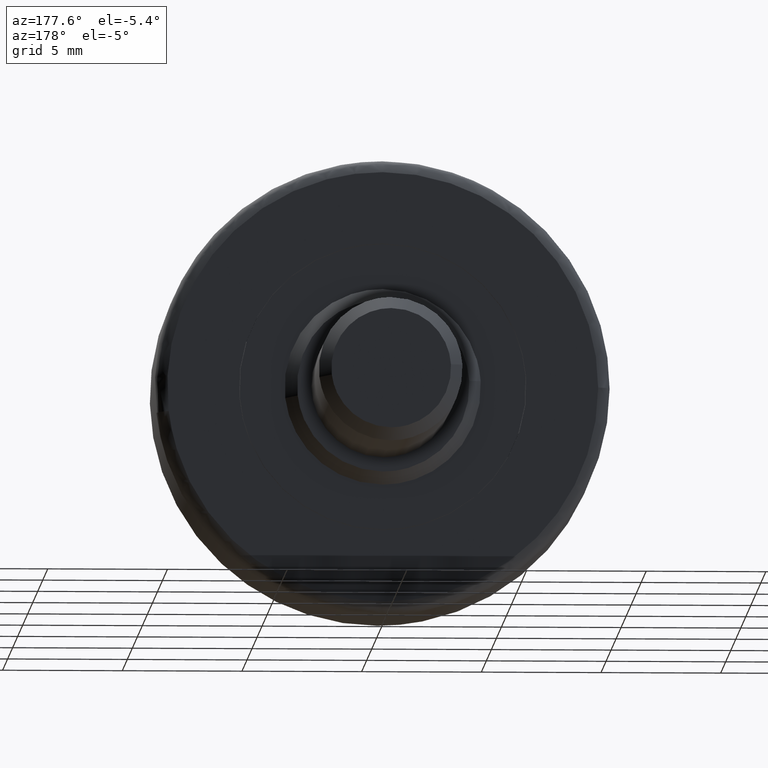
[diagram: clean part render]
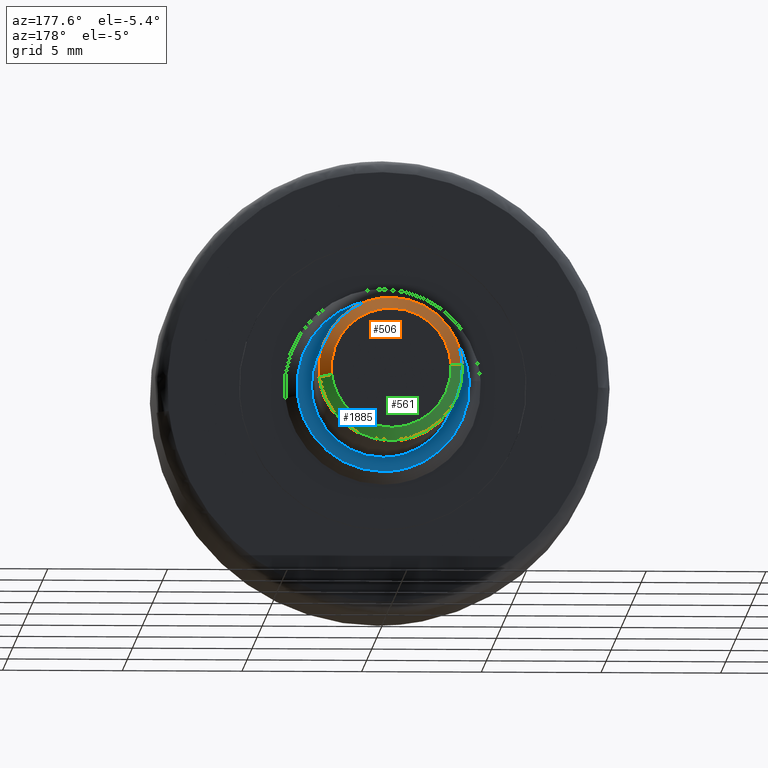
[diagram: same view with three faces highlighted in distinct colors, each labeled with its STEP entity id]
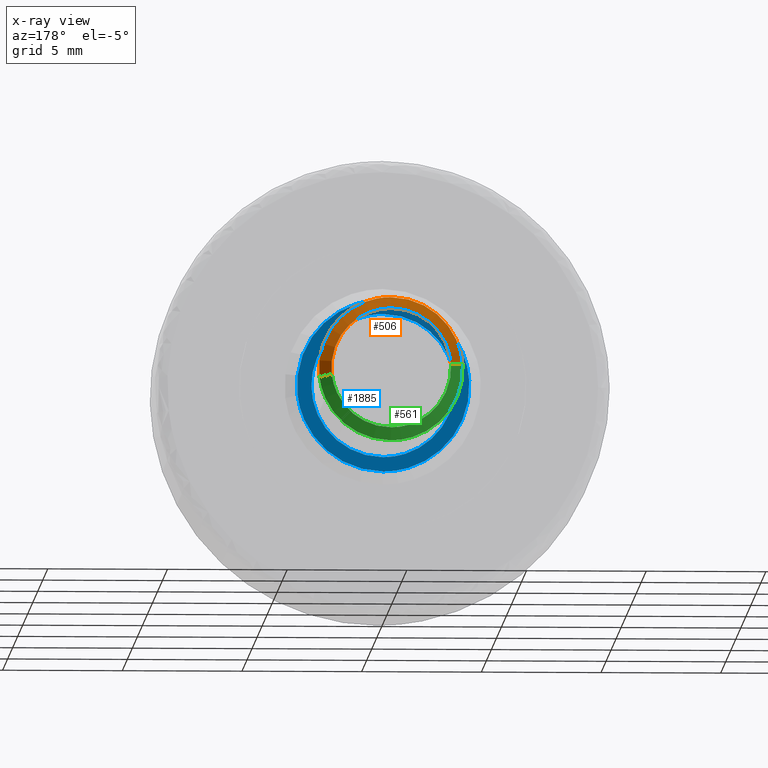
[diagram: x-ray of the same camera — body ghosted, the three highlighted faces saturated]
A machine part, auxiliary view with three faces highlighted in distinct colors.
The next image is the same camera in x-ray (body ghosted, the three faces saturated) — at least one of them is partly hidden behind the body in this view.
Their STEP definitions:

[orange] entity #506 — the highlighted face is a freeform B-spline surface patch.
#252=CARTESIAN_POINT('',(1.054853923180691,14.0,2.808430736327727));
#253=VERTEX_POINT('',#252);
#254=CARTESIAN_POINT('',(0.0,14.0,3.0));
#255=VERTEX_POINT('',#254);
#256=CARTESIAN_POINT('',(1.054853923180691,14.000000000000004,2.808430736327728));
#257=CARTESIAN_POINT('',(0.544822158206875,14.0,3.000000000000000));
#258=CARTESIAN_POINT('',(0.0,14.0,3.0));
#266=(BOUNDED_CURVE()B_SPLINE_CURVE(2,(#256,#257,#258),.UNSPECIFIED.,.F.,.U.)B_SPLINE_CURVE_WITH_KNOTS((3,3),(0.440284170898237,0.500000000000000),.UNSPECIFIED.)CURVE()GEOMETRIC_REPRESENTATION_ITEM()RATIONAL_B_SPLINE_CURVE((0.893499554634943,0.930038554401083,1.0))REPRESENTATION_ITEM(''));
#267=EDGE_CURVE('',#253,#255,#266,.T.);
#269=CARTESIAN_POINT('',(-2.994404395266901,13.999999999995220,0.183145618622853));
#270=VERTEX_POINT('',#269);
#271=CARTESIAN_POINT('',(0.0,14.0,3.0));
#272=CARTESIAN_POINT('',(-2.822118200648589,13.999999999999996,3.0));
#273=CARTESIAN_POINT('',(-2.994404395266901,13.999999999995214,0.183145618622853));
#281=(BOUNDED_CURVE()B_SPLINE_CURVE(2,(#271,#272,#273),.UNSPECIFIED.,.F.,.U.)B_SPLINE_CURVE_WITH_KNOTS((3,3),(0.500000000000000,0.739332962237788),.UNSPECIFIED.)CURVE()GEOMETRIC_REPRESENTATION_ITEM()RATIONAL_B_SPLINE_CURVE((1.0,0.719603993288063,0.976072041664243))REPRESENTATION_ITEM(''));
#282=EDGE_CURVE('',#255,#270,#281,.T.);
#351=CARTESIAN_POINT('',(2.979028579091068,13.999999999998851,-0.354102703979432));
#352=VERTEX_POINT('',#351);
#353=CARTESIAN_POINT('',(2.979028579091068,13.999999999998845,-0.354102703979432));
#354=CARTESIAN_POINT('',(3.0,14.000000000000004,-0.177672358964846));
#355=CARTESIAN_POINT('',(3.0,14.0,-1.552808E-016));
#356=CARTESIAN_POINT('',(3.0,13.999999999999995,2.077828787073818));
#357=CARTESIAN_POINT('',(1.054853923180691,14.000000000000004,2.808430736327728));
#365=(BOUNDED_CURVE()B_SPLINE_CURVE(2,(#353,#354,#355,#356,#357),.UNSPECIFIED.,.F.,.U.)B_SPLINE_CURVE_WITH_KNOTS((3,2,3),(0.229562473514621,0.250000000000000,0.440284170898238),.UNSPECIFIED.)CURVE()GEOMETRIC_REPRESENTATION_ITEM()RATIONAL_B_SPLINE_CURVE((0.956026754185880,0.976055948332448,1.0,0.777068226785465,0.893499554634943))REPRESENTATION_ITEM(''));
#366=EDGE_CURVE('',#352,#253,#365,.T.);
#435=CARTESIAN_POINT('',(2.470111196829619,14.512500000000003,-0.293610158708687));
#436=CARTESIAN_POINT('',(2.478514193428405,14.512499999999999,-0.222916637486969));
#437=CARTESIAN_POINT('',(2.482860311074392,14.512499999999999,-0.151858242092957));
#438=CARTESIAN_POINT('',(2.634718553167348,14.512499999999999,2.331002068981435));
#439=CARTESIAN_POINT('',(0.151858242092957,14.512499999999999,2.482860311074392));
#440=CARTESIAN_POINT('',(-2.331002068981435,14.512499999999999,2.634718553167348));
#441=CARTESIAN_POINT('',(-2.482860311074392,14.512499999999999,0.151858242092957));
#442=CARTESIAN_POINT('',(2.991751513647535,13.987187500000005,-0.355615017601816));
#443=CARTESIAN_POINT('',(3.001929062668754,13.987187500000001,-0.269992374624607));
#444=CARTESIAN_POINT('',(3.007192997370382,13.987187499999999,-0.183927803017362));
#445=CARTESIAN_POINT('',(3.191120800387744,13.987187499999999,2.823265194353021));
#446=CARTESIAN_POINT('',(0.183927803017361,13.987187499999999,3.007192997370382));
#447=CARTESIAN_POINT('',(-2.823265194353021,13.987187499999999,3.191120800387744));
#448=CARTESIAN_POINT('',(-3.007192997370382,13.987187499999999,0.183927803017361));
#456=(BOUNDED_SURFACE()B_SPLINE_SURFACE(2,1,((#435,#442),(#436,#443),(#437,#444),(#438,#445),(#439,#446),(#440,#447),(#441,#448)),.UNSPECIFIED.,.F.,.F.,.U.)B_SPLINE_SURFACE_WITH_KNOTS((3,2,2,3),(2,2),(0.0,0.199671647741951,5.191462841290716,10.183254034839480),(0.0,1.0),.UNSPECIFIED.)GEOMETRIC_REPRESENTATION_ITEM()RATIONAL_B_SPLINE_SURFACE(((0.977505800795127,0.977505800795127),(0.988284271247462,0.988284271247462),(1.0,1.0),(0.707106781186548,0.707106781186548),(1.0,1.0),(0.707106781186548,0.707106781186548),(1.0,1.0)))REPRESENTATION_ITEM('')SURFACE());
#457=ORIENTED_EDGE('',*,*,#366,.F.);
#458=CARTESIAN_POINT('',(2.482523815909515,14.499999999994420,-0.295085586686244));
#459=VERTEX_POINT('',#458);
#460=CARTESIAN_POINT('',(2.482523815909515,14.499999999994420,-0.295085586686244));
#461=CARTESIAN_POINT('',(2.979028579091068,13.999999999998851,-0.354102703979432));
#462=QUASI_UNIFORM_CURVE('',1,(#460,#461),.UNSPECIFIED.,.F.,.U.);
#463=EDGE_CURVE('',#459,#352,#462,.T.);
#464=ORIENTED_EDGE('',*,*,#463,.F.);
#465=CARTESIAN_POINT('',(0.0,14.500000000000000,2.500000000000000));
#466=VERTEX_POINT('',#465);
#467=CARTESIAN_POINT('',(2.482523815909515,14.499999999994422,-0.295085586686244));
#468=CARTESIAN_POINT('',(2.500000000000000,14.500000000000005,-0.148060299173927));
#469=CARTESIAN_POINT('',(2.500000000000000,14.500000000000000,-1.552808E-016));
#470=CARTESIAN_POINT('',(2.500000000000000,14.500000000000000,2.500000000000000));
#471=CARTESIAN_POINT('',(0.0,14.500000000000000,2.500000000000000));
#479=(BOUNDED_CURVE()B_SPLINE_CURVE(2,(#467,#468,#469,#470,#471),.UNSPECIFIED.,.F.,.U.)B_SPLINE_CURVE_WITH_KNOTS((3,2,3),(0.229562473509696,0.250000000000000,0.500000000000000),.UNSPECIFIED.)CURVE()GEOMETRIC_REPRESENTATION_ITEM()RATIONAL_B_SPLINE_CURVE((0.956026754176226,0.976055948326678,1.0,0.707106781186548,1.0))REPRESENTATION_ITEM(''));
#480=EDGE_CURVE('',#459,#466,#479,.T.);
#481=ORIENTED_EDGE('',*,*,#480,.T.);
#482=CARTESIAN_POINT('',(-2.495336996060050,14.499999999989960,0.152621348913621));
#483=VERTEX_POINT('',#482);
#484=CARTESIAN_POINT('',(0.0,14.500000000000000,2.500000000000000));
#485=CARTESIAN_POINT('',(-2.351765167120956,14.499999999999998,2.500000000000000));
#486=CARTESIAN_POINT('',(-2.495336996060051,14.499999999989962,0.152621348913621));
#494=(BOUNDED_CURVE()B_SPLINE_CURVE(2,(#484,#485,#486),.UNSPECIFIED.,.F.,.U.)B_SPLINE_CURVE_WITH_KNOTS((3,3),(0.500000000000000,0.739332962231475),.UNSPECIFIED.)CURVE()GEOMETRIC_REPRESENTATION_ITEM()RATIONAL_B_SPLINE_CURVE((1.0,0.719603993295459,0.976072041650714))REPRESENTATION_ITEM(''));
#495=EDGE_CURVE('',#466,#483,#494,.T.);
#496=ORIENTED_EDGE('',*,*,#495,.T.);
#497=CARTESIAN_POINT('',(-2.495336996060050,14.499999999989960,0.152621348913621));
#498=CARTESIAN_POINT('',(-2.994404395266901,13.999999999995220,0.183145618622853));
#499=QUASI_UNIFORM_CURVE('',1,(#497,#498),.UNSPECIFIED.,.F.,.U.);
#500=EDGE_CURVE('',#483,#270,#499,.T.);
#501=ORIENTED_EDGE('',*,*,#500,.T.);
#502=ORIENTED_EDGE('',*,*,#282,.F.);
#503=ORIENTED_EDGE('',*,*,#267,.F.);
#504=EDGE_LOOP('',(#457,#464,#481,#496,#501,#502,#503));
#505=FACE_OUTER_BOUND('',#504,.T.);
#506=ADVANCED_FACE('',(#505),#456,.T.);

[blue] entity #1885 — the highlighted face is a freeform B-spline surface patch.
#85=CARTESIAN_POINT('',(3.574834294909421,6.499999999996467,-0.424923244792396));
#86=VERTEX_POINT('',#85);
#92=CARTESIAN_POINT('',(0.0,6.500000000000000,3.600000000000000));
#93=VERTEX_POINT('',#92);
#94=CARTESIAN_POINT('',(3.574834294909421,6.499999999996467,-0.424923244792396));
#95=CARTESIAN_POINT('',(3.600000000000000,6.500000000000001,-0.213206830774817));
#96=CARTESIAN_POINT('',(3.600000000000000,6.500000000000000,-1.552808E-016));
#97=CARTESIAN_POINT('',(3.600000000000000,6.500000000000000,3.600000000000000));
#98=CARTESIAN_POINT('',(0.0,6.500000000000000,3.600000000000000));
#106=(BOUNDED_CURVE()B_SPLINE_CURVE(2,(#94,#95,#96,#97,#98),.UNSPECIFIED.,.F.,.U.)B_SPLINE_CURVE_WITH_KNOTS((3,2,3),(0.229562473513030,0.250000000000000,0.500000000000000),.UNSPECIFIED.)CURVE()GEOMETRIC_REPRESENTATION_ITEM()RATIONAL_B_SPLINE_CURVE((0.956026754182762,0.976055948330585,1.0,0.707106781186547,1.0))REPRESENTATION_ITEM(''));
#107=EDGE_CURVE('',#86,#93,#106,.T.);
#109=CARTESIAN_POINT('',(-3.593285274322899,6.499999999992211,0.219774742384762));
#110=VERTEX_POINT('',#109);
#111=CARTESIAN_POINT('',(0.0,6.500000000000000,3.600000000000000));
#112=CARTESIAN_POINT('',(-3.386541840749446,6.500000000000001,3.600000000000001));
#113=CARTESIAN_POINT('',(-3.593285274322899,6.499999999992211,0.219774742384762));
#121=(BOUNDED_CURVE()B_SPLINE_CURVE(2,(#111,#112,#113),.UNSPECIFIED.,.F.,.U.)B_SPLINE_CURVE_WITH_KNOTS((3,3),(0.500000000000000,0.739332962236321),.UNSPECIFIED.)CURVE()GEOMETRIC_REPRESENTATION_ITEM()RATIONAL_B_SPLINE_CURVE((1.0,0.719603993289782,0.976072041661098))REPRESENTATION_ITEM(''));
#122=EDGE_CURVE('',#93,#110,#121,.T.);
#196=CARTESIAN_POINT('',(0.0,6.500000000000000,-3.600000000000000));
#197=VERTEX_POINT('',#196);
#198=CARTESIAN_POINT('',(-3.593285274322899,6.499999999992211,0.219774742384762));
#199=CARTESIAN_POINT('',(-3.600000000000001,6.500000000000000,0.109989947933887));
#200=CARTESIAN_POINT('',(-3.600000000000000,6.500000000000000,-1.552808E-016));
#201=CARTESIAN_POINT('',(-3.600000000000000,6.500000000000000,-3.600000000000000));
#202=CARTESIAN_POINT('',(0.0,6.500000000000000,-3.600000000000000));
#210=(BOUNDED_CURVE()B_SPLINE_CURVE(2,(#198,#199,#200,#201,#202),.UNSPECIFIED.,.F.,.U.)B_SPLINE_CURVE_WITH_KNOTS((3,2,3),(0.739332962236321,0.750000000000000,1.0),.UNSPECIFIED.)CURVE()GEOMETRIC_REPRESENTATION_ITEM()RATIONAL_B_SPLINE_CURVE((0.976072041661099,0.987502787896766,1.0,0.707106781186547,1.0))REPRESENTATION_ITEM(''));
#211=EDGE_CURVE('',#110,#197,#210,.T.);
#213=CARTESIAN_POINT('',(0.0,6.500000000000000,-3.600000000000000));
#214=CARTESIAN_POINT('',(3.197428293375118,6.500000000000002,-3.599999999999999));
#215=CARTESIAN_POINT('',(3.574834294909421,6.499999999996467,-0.424923244792396));
#223=(BOUNDED_CURVE()B_SPLINE_CURVE(2,(#213,#214,#215),.UNSPECIFIED.,.F.,.U.)B_SPLINE_CURVE_WITH_KNOTS((3,3),(0.0,0.229562473513030),.UNSPECIFIED.)CURVE()GEOMETRIC_REPRESENTATION_ITEM()RATIONAL_B_SPLINE_CURVE((1.0,0.731050832855963,0.956026754182762))REPRESENTATION_ITEM(''));
#224=EDGE_CURVE('',#197,#86,#223,.T.);
#284=CARTESIAN_POINT('',(-2.994404722532819,6.500000000000000,0.183140267675935));
#285=VERTEX_POINT('',#284);
#291=CARTESIAN_POINT('',(0.0,6.500000000000000,3.0));
#292=VERTEX_POINT('',#291);
#293=CARTESIAN_POINT('',(0.0,6.500000000000000,3.0));
#294=CARTESIAN_POINT('',(-2.822123253202025,6.500000000000001,3.000000000000000));
#295=CARTESIAN_POINT('',(-2.994404722532819,6.500000000000000,0.183140267675935));
#303=(BOUNDED_CURVE()B_SPLINE_CURVE(2,(#293,#294,#295),.UNSPECIFIED.,.F.,.U.)B_SPLINE_CURVE_WITH_KNOTS((3,3),(0.500000000000000,0.739333270579003),.UNSPECIFIED.)CURVE()GEOMETRIC_REPRESENTATION_ITEM()RATIONAL_B_SPLINE_CURVE((1.0,0.719603632043860,0.976072702499051))REPRESENTATION_ITEM(''));
#304=EDGE_CURVE('',#292,#285,#303,.T.);
#306=CARTESIAN_POINT('',(1.054848825577395,6.500000000000000,2.808432650990288));
#307=VERTEX_POINT('',#306);
#308=CARTESIAN_POINT('',(1.054848825577395,6.500000000000001,2.808432650990288));
#309=CARTESIAN_POINT('',(0.544819345748177,6.500000000000000,3.0));
#310=CARTESIAN_POINT('',(0.0,6.500000000000000,3.0));
#318=(BOUNDED_CURVE()B_SPLINE_CURVE(2,(#308,#309,#310),.UNSPECIFIED.,.F.,.U.)B_SPLINE_CURVE_WITH_KNOTS((3,3),(0.440284457594457,0.500000000000000),.UNSPECIFIED.)CURVE()GEOMETRIC_REPRESENTATION_ITEM()RATIONAL_B_SPLINE_CURVE((0.893499905483831,0.930038890286598,1.0))REPRESENTATION_ITEM(''));
#319=EDGE_CURVE('',#307,#292,#318,.T.);
#369=CARTESIAN_POINT('',(0.0,6.500000000000000,-3.0));
#370=VERTEX_POINT('',#369);
#371=CARTESIAN_POINT('',(0.0,6.500000000000000,-3.0));
#372=CARTESIAN_POINT('',(3.0,6.500000000000001,-3.0));
#373=CARTESIAN_POINT('',(3.0,6.500000000000000,-1.552808E-016));
#374=CARTESIAN_POINT('',(3.0,6.500000000000000,2.077832815821784));
#375=CARTESIAN_POINT('',(1.054848825577395,6.500000000000001,2.808432650990288));
#383=(BOUNDED_CURVE()B_SPLINE_CURVE(2,(#371,#372,#373,#374,#375),.UNSPECIFIED.,.F.,.U.)B_SPLINE_CURVE_WITH_KNOTS((3,2,3),(0.0,0.250000000000000,0.440284457594457),.UNSPECIFIED.)CURVE()GEOMETRIC_REPRESENTATION_ITEM()RATIONAL_B_SPLINE_CURVE((1.0,0.707106781186548,1.0,0.777067890899950,0.893499905483831))REPRESENTATION_ITEM(''));
#384=EDGE_CURVE('',#370,#307,#383,.T.);
#386=CARTESIAN_POINT('',(-2.994404722532819,6.500000000000000,0.183140267675935));
#387=CARTESIAN_POINT('',(-3.0,6.500000000000000,0.091655606930074));
#388=CARTESIAN_POINT('',(-3.0,6.500000000000000,-1.552808E-016));
#389=CARTESIAN_POINT('',(-3.0,6.500000000000001,-3.0));
#390=CARTESIAN_POINT('',(0.0,6.500000000000000,-3.0));
#398=(BOUNDED_CURVE()B_SPLINE_CURVE(2,(#386,#387,#388,#389,#390),.UNSPECIFIED.,.F.,.U.)B_SPLINE_CURVE_WITH_KNOTS((3,2,3),(0.739333270579003,0.750000000000000,1.0),.UNSPECIFIED.)CURVE()GEOMETRIC_REPRESENTATION_ITEM()RATIONAL_B_SPLINE_CURVE((0.976072702499051,0.987503149142688,1.0,0.707106781186548,1.0))REPRESENTATION_ITEM(''));
#399=EDGE_CURVE('',#285,#370,#398,.T.);
#1868=CARTESIAN_POINT('',(-3.959552365244846,6.500000000000000,3.959639892733097));
#1869=CARTESIAN_POINT('',(-3.959552365244846,6.500000000000000,-3.959639635241032));
#1870=CARTESIAN_POINT('',(3.959574509562473,6.500000000000000,3.959639892733097));
#1871=CARTESIAN_POINT('',(3.959574509562473,6.500000000000000,-3.959639635241032));
#1872=B_SPLINE_SURFACE_WITH_KNOTS('',1,1,((#1868,#1870),(#1869,#1871)),.UNSPECIFIED.,.F.,.F.,.U.,(2,2),(2,2),(0.0,7.919279527974129),(0.0,7.919126874807319),.UNSPECIFIED.);
#1873=ORIENTED_EDGE('',*,*,#211,.F.);
#1874=ORIENTED_EDGE('',*,*,#122,.F.);
#1875=ORIENTED_EDGE('',*,*,#107,.F.);
#1876=ORIENTED_EDGE('',*,*,#224,.F.);
#1877=EDGE_LOOP('',(#1873,#1874,#1875,#1876));
#1878=FACE_OUTER_BOUND('',#1877,.T.);
#1879=ORIENTED_EDGE('',*,*,#304,.T.);
#1880=ORIENTED_EDGE('',*,*,#399,.T.);
#1881=ORIENTED_EDGE('',*,*,#384,.T.);
#1882=ORIENTED_EDGE('',*,*,#319,.T.);
#1883=EDGE_LOOP('',(#1879,#1880,#1881,#1882));
#1884=FACE_BOUND('',#1883,.T.);
#1885=ADVANCED_FACE('',(#1878,#1884),#1872,.F.);

[green] entity #561 — the highlighted face is a freeform B-spline surface patch.
#269=CARTESIAN_POINT('',(-2.994404395266901,13.999999999995220,0.183145618622853));
#270=VERTEX_POINT('',#269);
#351=CARTESIAN_POINT('',(2.979028579091068,13.999999999998851,-0.354102703979432));
#352=VERTEX_POINT('',#351);
#402=CARTESIAN_POINT('',(0.0,14.0,-3.0));
#403=VERTEX_POINT('',#402);
#404=CARTESIAN_POINT('',(-2.994404395266902,13.999999999995218,0.183145618622853));
#405=CARTESIAN_POINT('',(-3.000000000000000,14.000000000000004,0.091658289932137));
#406=CARTESIAN_POINT('',(-3.0,14.0,-1.552808E-016));
#407=CARTESIAN_POINT('',(-3.0,13.999999999999998,-3.0));
#408=CARTESIAN_POINT('',(0.0,14.0,-3.0));
#416=(BOUNDED_CURVE()B_SPLINE_CURVE(2,(#404,#405,#406,#407,#408),.UNSPECIFIED.,.F.,.U.)B_SPLINE_CURVE_WITH_KNOTS((3,2,3),(0.739332962237788,0.750000000000000,1.0),.UNSPECIFIED.)CURVE()GEOMETRIC_REPRESENTATION_ITEM()RATIONAL_B_SPLINE_CURVE((0.976072041664243,0.987502787898485,1.0,0.707106781186548,1.0))REPRESENTATION_ITEM(''));
#417=EDGE_CURVE('',#270,#403,#416,.T.);
#419=CARTESIAN_POINT('',(0.0,14.0,-3.0));
#420=CARTESIAN_POINT('',(2.664523577837851,14.0,-3.0));
#421=CARTESIAN_POINT('',(2.979028579091068,13.999999999998845,-0.354102703979432));
#429=(BOUNDED_CURVE()B_SPLINE_CURVE(2,(#419,#420,#421),.UNSPECIFIED.,.F.,.U.)B_SPLINE_CURVE_WITH_KNOTS((3,3),(0.0,0.229562473514621),.UNSPECIFIED.)CURVE()GEOMETRIC_REPRESENTATION_ITEM()RATIONAL_B_SPLINE_CURVE((1.0,0.731050832854099,0.956026754185880))REPRESENTATION_ITEM(''));
#430=EDGE_CURVE('',#403,#352,#429,.T.);
#458=CARTESIAN_POINT('',(2.482523815909515,14.499999999994420,-0.295085586686244));
#459=VERTEX_POINT('',#458);
#460=CARTESIAN_POINT('',(2.482523815909515,14.499999999994420,-0.295085586686244));
#461=CARTESIAN_POINT('',(2.979028579091068,13.999999999998851,-0.354102703979432));
#462=QUASI_UNIFORM_CURVE('',1,(#460,#461),.UNSPECIFIED.,.F.,.U.);
#463=EDGE_CURVE('',#459,#352,#462,.T.);
#482=CARTESIAN_POINT('',(-2.495336996060050,14.499999999989960,0.152621348913621));
#483=VERTEX_POINT('',#482);
#497=CARTESIAN_POINT('',(-2.495336996060050,14.499999999989960,0.152621348913621));
#498=CARTESIAN_POINT('',(-2.994404395266901,13.999999999995220,0.183145618622853));
#499=QUASI_UNIFORM_CURVE('',1,(#497,#498),.UNSPECIFIED.,.F.,.U.);
#500=EDGE_CURVE('',#483,#270,#499,.T.);
#507=CARTESIAN_POINT('',(-2.482860311074392,14.512499999999999,0.151858242092957));
#508=CARTESIAN_POINT('',(-2.634718553167348,14.512499999999999,-2.331002068981435));
#509=CARTESIAN_POINT('',(-0.151858242092957,14.512499999999999,-2.482860311074392));
#510=CARTESIAN_POINT('',(2.192839433463257,14.512499999999998,-2.626268164372160));
#511=CARTESIAN_POINT('',(2.470111196829619,14.512500000000003,-0.293610158708687));
#512=CARTESIAN_POINT('',(-3.007192997370382,13.987187499999999,0.183927803017361));
#513=CARTESIAN_POINT('',(-3.191120800387744,13.987187499999999,-2.823265194353021));
#514=CARTESIAN_POINT('',(-0.183927803017361,13.987187499999999,-3.007192997370382));
#515=CARTESIAN_POINT('',(2.655925248494886,13.987187499999994,-3.180885850843221));
#516=CARTESIAN_POINT('',(2.991751513647535,13.987187500000005,-0.355615017601816));
#524=(BOUNDED_SURFACE()B_SPLINE_SURFACE(2,1,((#507,#512),(#508,#513),(#509,#514),(#510,#515),(#511,#516)),.UNSPECIFIED.,.F.,.F.,.U.)B_SPLINE_SURFACE_WITH_KNOTS((3,2,3),(2,2),(0.0,4.991791193548764,9.783910739355576),(0.0,1.0),.UNSPECIFIED.)GEOMETRIC_REPRESENTATION_ITEM()RATIONAL_B_SPLINE_SURFACE(((1.0,1.0),(0.707106781186548,0.707106781186548),(1.0,1.0),(0.718822509939086,0.718822509939086),(0.977505800795127,0.977505800795127)))REPRESENTATION_ITEM('')SURFACE());
#525=ORIENTED_EDGE('',*,*,#430,.F.);
#526=ORIENTED_EDGE('',*,*,#417,.F.);
#527=ORIENTED_EDGE('',*,*,#500,.F.);
#528=CARTESIAN_POINT('',(0.0,14.500000000000000,-2.500000000000000));
#529=VERTEX_POINT('',#528);
#530=CARTESIAN_POINT('',(-2.495336996060050,14.499999999989955,0.152621348913621));
#531=CARTESIAN_POINT('',(-2.499999999999999,14.499999999999998,0.076381908322551));
#532=CARTESIAN_POINT('',(-2.500000000000000,14.500000000000000,-1.552808E-016));
#533=CARTESIAN_POINT('',(-2.500000000000000,14.500000000000000,-2.500000000000000));
#534=CARTESIAN_POINT('',(0.0,14.500000000000000,-2.500000000000000));
#542=(BOUNDED_CURVE()B_SPLINE_CURVE(2,(#530,#531,#532,#533,#534),.UNSPECIFIED.,.F.,.U.)B_SPLINE_CURVE_WITH_KNOTS((3,2,3),(0.739332962231476,0.750000000000000,1.0),.UNSPECIFIED.)CURVE()GEOMETRIC_REPRESENTATION_ITEM()RATIONAL_B_SPLINE_CURVE((0.976072041650716,0.987502787891090,1.0,0.707106781186548,1.0))REPRESENTATION_ITEM(''));
#543=EDGE_CURVE('',#483,#529,#542,.T.);
#544=ORIENTED_EDGE('',*,*,#543,.T.);
#545=CARTESIAN_POINT('',(0.0,14.500000000000000,-2.500000000000000));
#546=CARTESIAN_POINT('',(2.220436314799714,14.500000000000007,-2.500000000000000));
#547=CARTESIAN_POINT('',(2.482523815909515,14.499999999994422,-0.295085586686244));
#555=(BOUNDED_CURVE()B_SPLINE_CURVE(2,(#545,#546,#547),.UNSPECIFIED.,.F.,.U.)B_SPLINE_CURVE_WITH_KNOTS((3,3),(0.0,0.229562473509696),.UNSPECIFIED.)CURVE()GEOMETRIC_REPRESENTATION_ITEM()RATIONAL_B_SPLINE_CURVE((1.0,0.731050832859869,0.956026754176226))REPRESENTATION_ITEM(''));
#556=EDGE_CURVE('',#529,#459,#555,.T.);
#557=ORIENTED_EDGE('',*,*,#556,.T.);
#558=ORIENTED_EDGE('',*,*,#463,.T.);
#559=EDGE_LOOP('',(#525,#526,#527,#544,#557,#558));
#560=FACE_OUTER_BOUND('',#559,.T.);
#561=ADVANCED_FACE('',(#560),#524,.T.);